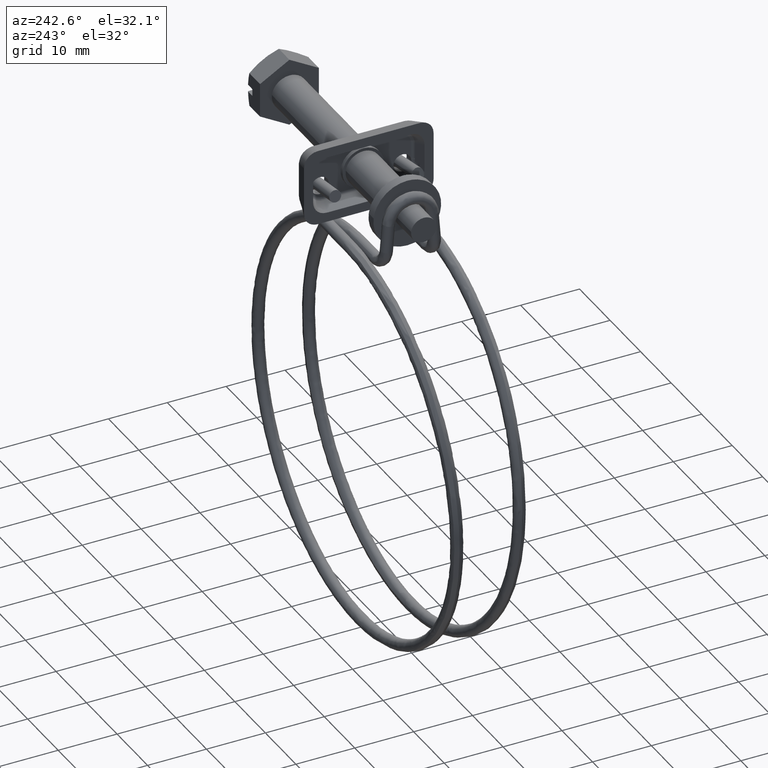
[diagram: clean part render]
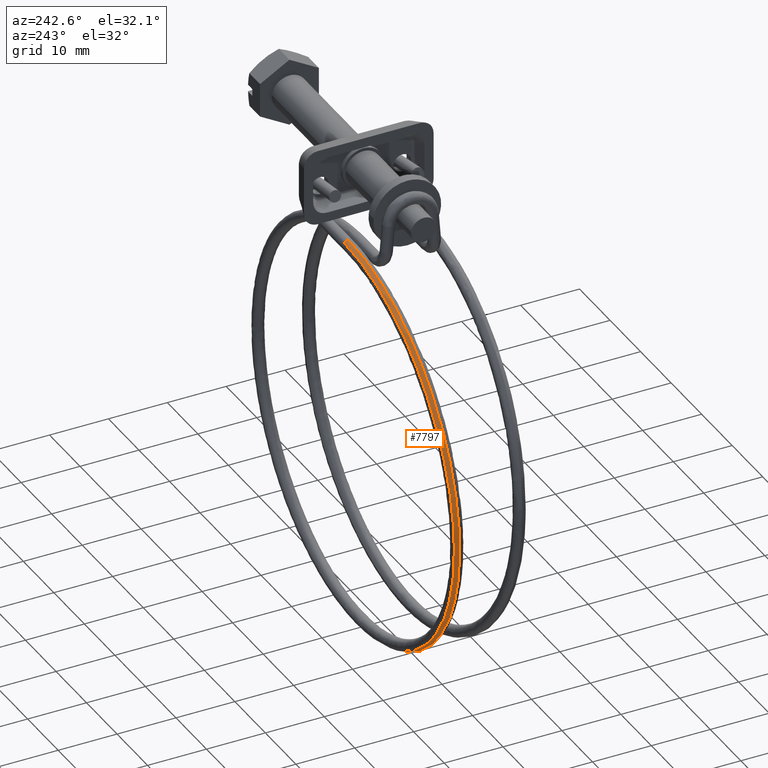
[diagram: same view with one face highlighted and labeled with its STEP entity id]
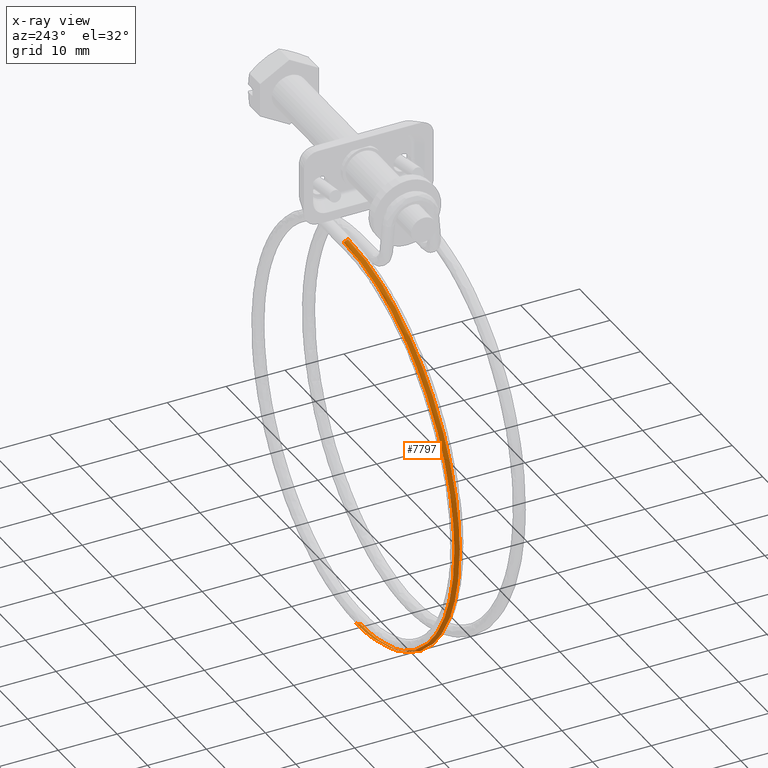
[diagram: x-ray of the same camera — body ghosted, the highlighted face saturated]
A machine part, auxiliary view. The second image highlights one B-rep face of the part: STEP entity #7797.
The next image is the same camera in x-ray: the body ghosted, the highlighted face saturated — about 0% of this face is hidden behind the body in this view.
In plain terms, the highlighted face is a freeform B-spline surface patch.
Its self-contained STEP definition (entity closure, byte-faithful):
#5728=CARTESIAN_POINT('',(-31.500000000001201,6.369947953116897,-6.851799381403090));
#5729=VERTEX_POINT('',#5728);
#5806=CARTESIAN_POINT('',(-31.500000000001201,7.078674721900081,-7.210393451102995));
#5807=VERTEX_POINT('',#5806);
#5819=CARTESIAN_POINT('',(-31.500000000001190,6.369947953116894,-6.851799381403066));
#5820=CARTESIAN_POINT('',(-31.500000000001201,6.631276525765690,-6.867493219982315));
#5821=CARTESIAN_POINT('',(-31.500000000001190,6.884535309607371,-6.990669697786821));
#5822=CARTESIAN_POINT('',(-31.500000000001190,7.065173233139581,-7.194389881439482));
#5823=CARTESIAN_POINT('',(-31.500000000001190,7.071990425149596,-7.202338123314804));
#5824=CARTESIAN_POINT('',(-31.500000000001201,7.078674721900081,-7.210393451102995));
#5825=B_SPLINE_CURVE_WITH_KNOTS('',3,(#5819,#5820,#5821,#5822,#5823,#5824),.UNSPECIFIED.,.F.,.U.,(4,2,4),(0.0,0.125000000000000,0.130000243199439),.UNSPECIFIED.);
#5826=EDGE_CURVE('',#5729,#5807,#5825,.T.);
#6677=CARTESIAN_POINT('',(-31.500034371880741,4.300000213744417,-75.850000999962504));
#6678=VERTEX_POINT('',#6677);
#6694=CARTESIAN_POINT('',(-31.499999999998799,5.028950504939290,-75.534537187868480));
#6695=VERTEX_POINT('',#6694);
#6696=CARTESIAN_POINT('',(-31.500034371880741,4.300000213744417,-75.850000999962504));
#6697=CARTESIAN_POINT('',(-31.500023974601000,4.561800141875719,-75.850000999973872));
#6698=CARTESIAN_POINT('',(-31.500011789033881,4.821988046106819,-75.742227903597012));
#6699=CARTESIAN_POINT('',(-31.500000833992608,5.014513902913902,-75.549702616120157));
#6700=CARTESIAN_POINT('',(-31.500000415476030,5.021795322448379,-75.542177331933075));
#6701=CARTESIAN_POINT('',(-31.499999999998799,5.028950504939290,-75.534537187868480));
#6702=B_SPLINE_CURVE_WITH_KNOTS('',3,(#6696,#6697,#6698,#6699,#6700,#6701),.UNSPECIFIED.,.F.,.U.,(4,2,4),(0.0,0.125000000000000,0.130000243199279),.UNSPECIFIED.);
#6703=EDGE_CURVE('',#6678,#6695,#6702,.T.);
#7687=CARTESIAN_POINT('',(-31.500000000001201,7.078674721900081,-7.210393451102995));
#7688=CARTESIAN_POINT('',(-35.973005246352727,7.078816173189922,-7.210426571157433));
#7689=CARTESIAN_POINT('',(-40.442629881486248,7.051994873993948,-8.099707035284277));
#7690=CARTESIAN_POINT('',(-48.705730897072797,6.949307687598625,-11.522613299489890));
#7691=CARTESIAN_POINT('',(-52.495228591303217,6.873340451811479,-14.054854530071310));
#7692=CARTESIAN_POINT('',(-58.819111408478953,6.683614215919462,-20.379062487825969));
#7693=CARTESIAN_POINT('',(-61.351014895100157,6.569929865700559,-24.168540884870570));
#7694=CARTESIAN_POINT('',(-64.773315190730528,6.322053691483693,-32.431080148747832));
#7695=CARTESIAN_POINT('',(-65.662370306520017,6.187959255794595,-36.900894738474442));
#7696=CARTESIAN_POINT('',(-65.662370306580911,5.919665025844651,-45.844035870206532));
#7697=CARTESIAN_POINT('',(-64.773315190714143,5.785570590153837,-50.313850459972343));
#7698=CARTESIAN_POINT('',(-61.351014895114623,5.537694415940402,-58.576389723770887));
#7699=CARTESIAN_POINT('',(-58.819111408463492,5.424010065719992,-62.365868120890909));
#7700=CARTESIAN_POINT('',(-52.495228591315367,5.234283829827603,-68.690076078572261));
#7701=CARTESIAN_POINT('',(-48.705730897092522,5.158316594041912,-71.222317309206503));
#7702=CARTESIAN_POINT('',(-40.442629881462068,5.055629407644091,-74.645223573378388));
#7703=CARTESIAN_POINT('',(-35.973005278200759,5.028950991145331,-75.534537766680472));
#7704=CARTESIAN_POINT('',(-31.499999999998799,5.028950504939290,-75.534537187868480));
#7705=B_SPLINE_CURVE_WITH_KNOTS('',3,(#7687,#7688,#7689,#7690,#7691,#7692,#7693,#7694,#7695,#7696,#7697,#7698,#7699,#7700,#7701,#7702,#7703,#7704),.UNSPECIFIED.,.F.,.U.,(4,2,2,2,2,2,2,2,4),(0.046832184104402,0.072705557828579,0.098578931552755,0.124452305276931,0.150325679001107,0.176199052725283,0.202072426449459,0.227945800173635,0.253819173897811),.UNSPECIFIED.);
#7706=EDGE_CURVE('',#5807,#6695,#7705,.T.);
#7712=CARTESIAN_POINT('',(-31.500000000001201,6.369947953116897,-6.851799381403090));
#7713=CARTESIAN_POINT('',(-36.017173141169252,6.370090573670307,-6.851833587355212));
#7714=CARTESIAN_POINT('',(-40.530931910826439,6.343005106974656,-7.749895642830397));
#7715=CARTESIAN_POINT('',(-48.875610990040073,6.239304065803082,-11.206594083899491));
#7716=CARTESIAN_POINT('',(-52.702512805671333,6.162586885326348,-13.763831264365820));
#7717=CARTESIAN_POINT('',(-59.088801271760062,5.970988313847462,-20.150444897923489));
#7718=CARTESIAN_POINT('',(-61.645682410134476,5.856182327735246,-23.977307856237779));
#7719=CARTESIAN_POINT('',(-65.101741459182790,5.605861102278039,-32.321341628902410));
#7720=CARTESIAN_POINT('',(-65.999565239939443,5.470444201918446,-36.835234479548753));
#7721=CARTESIAN_POINT('',(-65.999569739014092,5.199504029492339,-45.866565901819193));
#7722=CARTESIAN_POINT('',(-65.101750455446023,5.064087129132817,-50.380458752502527));
#7723=CARTESIAN_POINT('',(-61.645699719656001,4.813765903675474,-58.724492525093027));
#7724=CARTESIAN_POINT('',(-59.088822394027623,4.698959917563618,-62.551355483473891));
#7725=CARTESIAN_POINT('',(-52.702540291015850,4.507361346084183,-68.937969116971274));
#7726=CARTESIAN_POINT('',(-48.875641023214257,4.430644165607749,-71.495206297467035));
#7727=CARTESIAN_POINT('',(-40.530965387891243,4.326943124436173,-74.951904738536143));
#7728=CARTESIAN_POINT('',(-36.017207545317049,4.300001232212896,-75.850000999976814));
#7729=CARTESIAN_POINT('',(-31.500034371880741,4.300000213744417,-75.850000999962504));
#7730=B_SPLINE_CURVE_WITH_KNOTS('',3,(#7712,#7713,#7714,#7715,#7716,#7717,#7718,#7719,#7720,#7721,#7722,#7723,#7724,#7725,#7726,#7727,#7728,#7729),.UNSPECIFIED.,.F.,.U.,(4,2,2,2,2,2,2,2,4),(0.046832184104402,0.072705557828579,0.098578931552755,0.124452305276931,0.150325679001107,0.176199052725283,0.202072426449459,0.227945800173635,0.253819173897811),.UNSPECIFIED.);
#7731=EDGE_CURVE('',#5729,#6678,#7730,.T.);
#7738=CARTESIAN_POINT('',(-30.957937309266470,6.365852317195761,-6.851550344946801));
#7739=CARTESIAN_POINT('',(-30.958048561669109,6.640438190153505,-6.866868661548879));
#7740=CARTESIAN_POINT('',(-30.960030114241459,6.906531520621621,-7.000968825138805));
#7741=CARTESIAN_POINT('',(-30.963287524312829,7.081264642205912,-7.213531066607235));
#7742=CARTESIAN_POINT('',(-31.138622250254119,6.365837110799362,-6.852241401071488));
#7743=CARTESIAN_POINT('',(-31.138696419074019,6.640422987457830,-6.867559575698232));
#7744=CARTESIAN_POINT('',(-31.140017463944272,6.906516383820383,-7.001657210509418));
#7745=CARTESIAN_POINT('',(-31.142189086804681,7.081249613595975,-7.214215295031201));
#7746=CARTESIAN_POINT('',(-35.836236976251612,6.367077438740941,-6.815634126547931));
#7747=CARTESIAN_POINT('',(-35.835347012688061,6.641663075675768,-6.830959813125105));
#7748=CARTESIAN_POINT('',(-35.819495583383080,6.907752201721778,-6.965191245504030));
#7749=CARTESIAN_POINT('',(-35.793437932338790,7.082478408304900,-7.177969276287779));
#7750=CARTESIAN_POINT('',(-45.046728866253652,6.311926924305885,-8.647994983765642));
#7751=CARTESIAN_POINT('',(-45.043948573444787,6.586523862620797,-8.662944563443894));
#7752=CARTESIAN_POINT('',(-44.994427877368608,6.852814281860110,-8.790477034207516));
#7753=CARTESIAN_POINT('',(-44.913022409642203,7.027871392050916,-8.992242858076391));
#7754=CARTESIAN_POINT('',(-56.530924969681656,6.081764187005108,-16.322060610335580));
#7755=CARTESIAN_POINT('',(-56.525788665459707,6.356408355025338,-16.335435666799160));
#7756=CARTESIAN_POINT('',(-56.434304286838071,6.623539997636762,-16.434923794448771));
#7757=CARTESIAN_POINT('',(-56.283916081020692,6.799979966271099,-16.590588431644541));
#7758=CARTESIAN_POINT('',(-64.203847426774601,5.737253154433202,-27.805432822706219));
#7759=CARTESIAN_POINT('',(-64.197137923708468,6.011967965190054,-27.816453154489199));
#7760=CARTESIAN_POINT('',(-64.077632790831686,6.280357848529159,-27.874000517944559));
#7761=CARTESIAN_POINT('',(-63.881182174956777,6.458866198556400,-27.960720091752609));
#7762=CARTESIAN_POINT('',(-66.897566167474153,5.330892941575612,-41.350773453433654));
#7763=CARTESIAN_POINT('',(-66.890304589612541,5.605691043971917,-41.359017397237011));
#7764=CARTESIAN_POINT('',(-66.760966273687359,5.875564461662792,-41.367113614821200));
#7765=CARTESIAN_POINT('',(-66.548351206837808,6.056511545746232,-41.372542052218968));
#7766=CARTESIAN_POINT('',(-64.203838628671463,4.924533113144372,-54.896101269986339));
#7767=CARTESIAN_POINT('',(-64.197129127115360,5.199414507102600,-54.901568828353682));
#7768=CARTESIAN_POINT('',(-64.077624021203661,5.470771457779632,-54.860213945591887));
#7769=CARTESIAN_POINT('',(-63.881173449666811,5.654157273676409,-54.784351321367140));
#7770=CARTESIAN_POINT('',(-56.530926671023032,4.580031186938224,-66.379501315591980));
#7771=CARTESIAN_POINT('',(-56.525790366511998,4.854983222786396,-66.382614144040033));
#7772=CARTESIAN_POINT('',(-56.434305982670388,5.127598399209686,-66.299318394321006));
#7773=CARTESIAN_POINT('',(-56.283917768267990,5.313052571645077,-66.154510537322238));
#7774=CARTESIAN_POINT('',(-45.046728277813862,4.349809390541113,-74.053547306018402));
#7775=CARTESIAN_POINT('',(-45.043947985102093,4.624808662058617,-74.055085613346847));
#7776=CARTESIAN_POINT('',(-44.994427290857672,4.898265167440608,-73.943745613765813));
#7777=CARTESIAN_POINT('',(-44.913021826133622,5.085102373245166,-73.752836726270715));
#7778=CARTESIAN_POINT('',(-35.836237121869388,4.294838505478110,-75.885952655061132));
#7779=CARTESIAN_POINT('',(-35.835347158284748,4.569849060193038,-75.887114852159698));
#7780=CARTESIAN_POINT('',(-35.819495728476767,4.843506536824714,-75.769075661554481));
#7781=CARTESIAN_POINT('',(-35.793438076599848,5.030674112899796,-75.567154181389782));
#7782=CARTESIAN_POINT('',(-31.138622247619431,4.295936739796278,-75.849311259588688));
#7783=CARTESIAN_POINT('',(-31.138696416439469,4.570947069166325,-75.850480971055674));
#7784=CARTESIAN_POINT('',(-31.140017461322749,4.844600530082159,-75.732575755649890));
#7785=CARTESIAN_POINT('',(-31.142189084205619,5.031761504736846,-75.530874520546874));
#7786=CARTESIAN_POINT('',(-30.957937305390050,4.295916008409408,-75.850001000012767));
#7787=CARTESIAN_POINT('',(-30.958048557792910,4.570926342039312,-75.851170569596178));
#7788=CARTESIAN_POINT('',(-30.960030110384420,4.844579878750098,-75.733262832279422));
#7789=CARTESIAN_POINT('',(-30.963287520488830,5.031740977997164,-75.531557451783200));
#7790=B_SPLINE_SURFACE_WITH_KNOTS('',3,3,((#7738,#7742,#7746,#7750,#7754,#7758,#7762,#7766,#7770,#7774,#7778,#7782,#7786),(#7739,#7743,#7747,#7751,#7755,#7759,#7763,#7767,#7771,#7775,#7779,#7783,#7787),(#7740,#7744,#7748,#7752,#7756,#7760,#7764,#7768,#7772,#7776,#7780,#7784,#7788),(#7741,#7745,#7749,#7753,#7757,#7761,#7765,#7769,#7773,#7777,#7781,#7785,#7789)),.UNSPECIFIED.,.F.,.F.,.U.,(4,4),(4,1,1,1,1,1,1,1,1,1,4),(0.0,0.825545170765005),(0.0,0.542058789436729,14.093528828253760,27.644998867070779,41.196468905887762,54.747938944704927,68.299408983521914,81.850879022338887,95.402349061155860,108.953819099972800,109.495877889409600),.UNSPECIFIED.);
#7791=ORIENTED_EDGE('',*,*,#6703,.F.);
#7792=ORIENTED_EDGE('',*,*,#7731,.F.);
#7793=ORIENTED_EDGE('',*,*,#5826,.T.);
#7794=ORIENTED_EDGE('',*,*,#7706,.T.);
#7795=EDGE_LOOP('',(#7791,#7792,#7793,#7794));
#7796=FACE_OUTER_BOUND('',#7795,.T.);
#7797=ADVANCED_FACE('',(#7796),#7790,.T.);